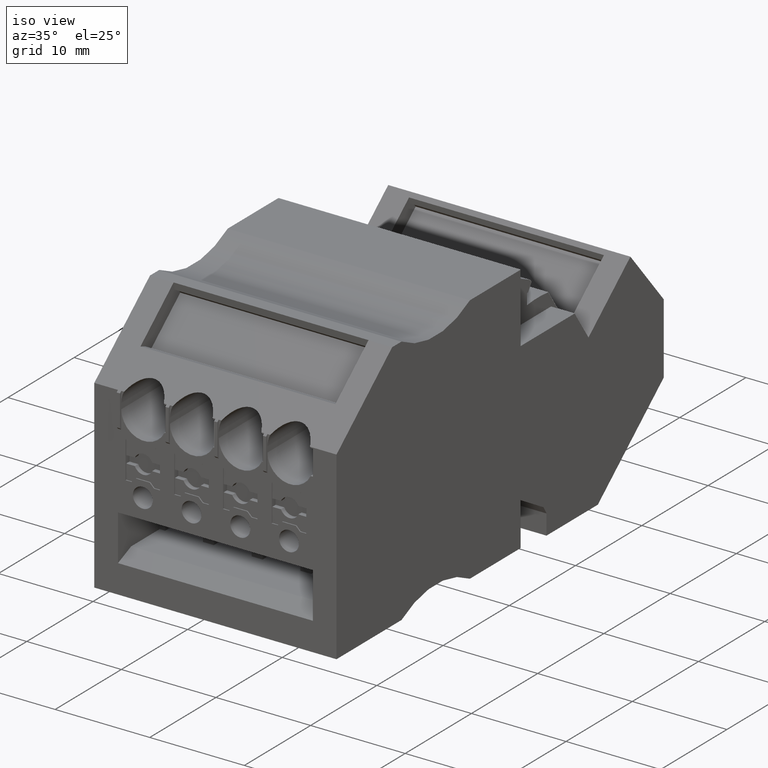
[diagram: clean part render]
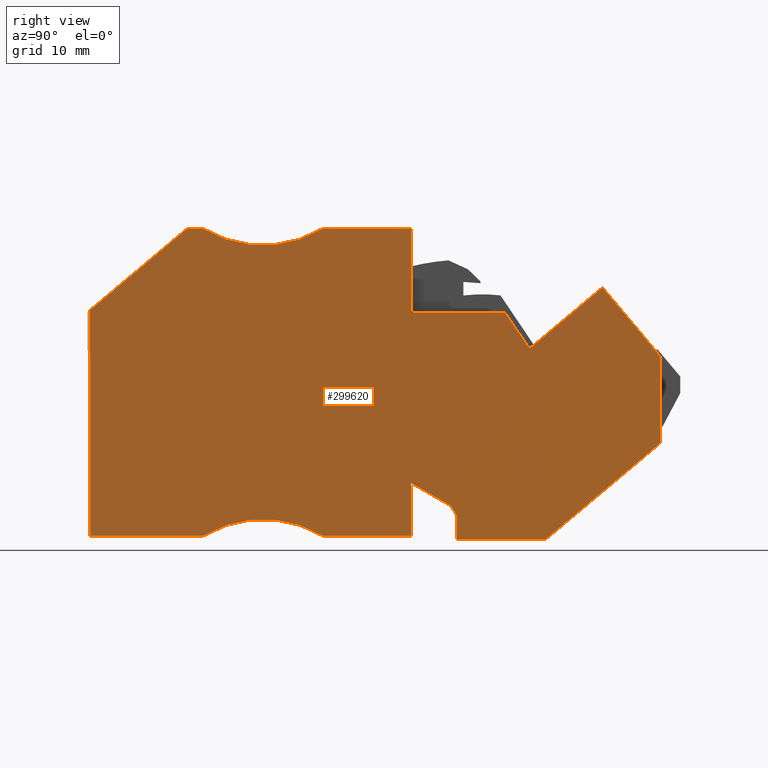
[diagram: tour spotlight — one face highlighted and labeled with its STEP entity id]
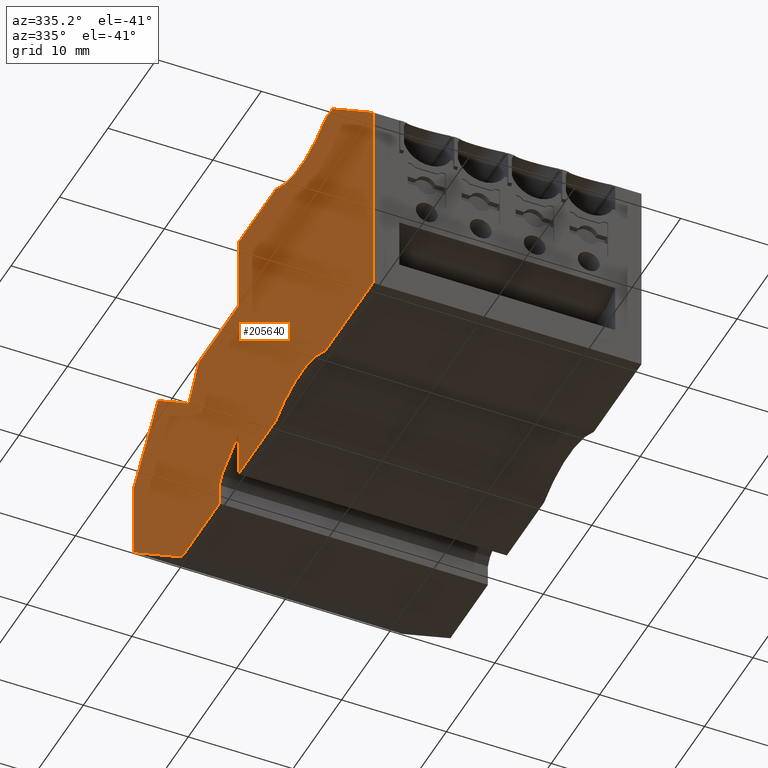
[diagram: tour spotlight — one face highlighted and labeled with its STEP entity id]
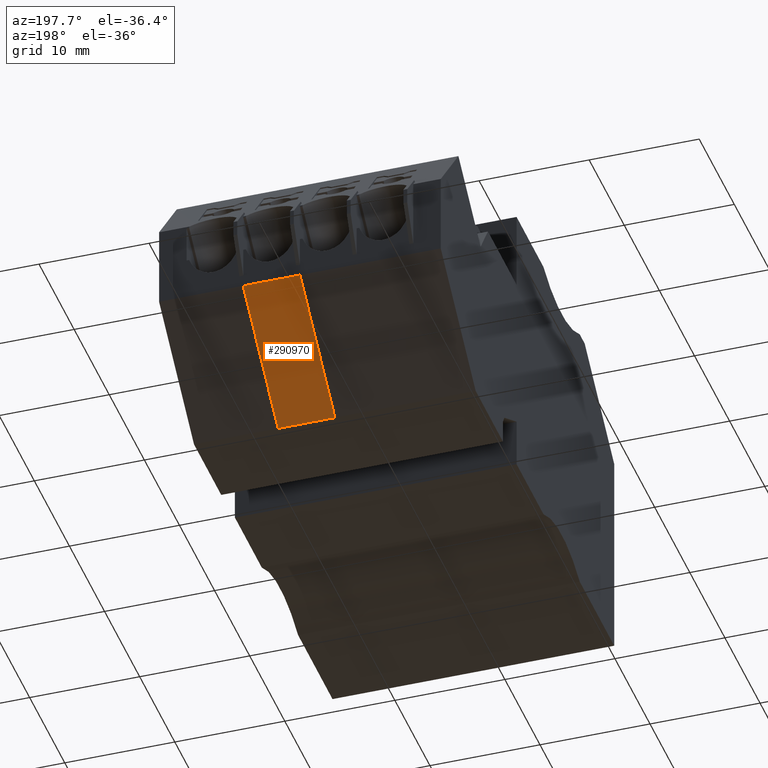
[diagram: tour spotlight — one face highlighted and labeled with its STEP entity id]
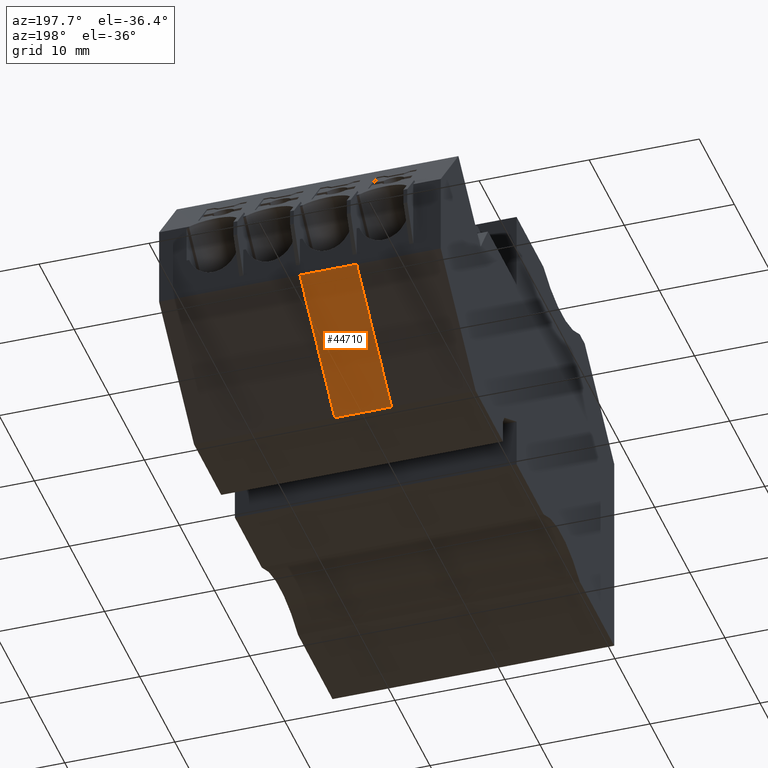
[diagram: tour spotlight — one face highlighted and labeled with its STEP entity id]
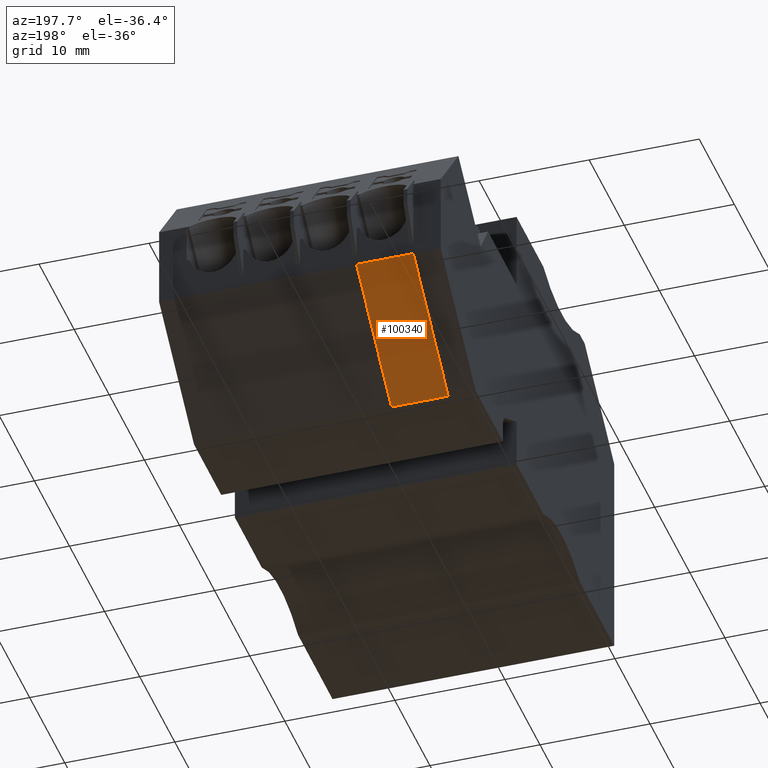
[diagram: tour spotlight — one face highlighted and labeled with its STEP entity id]
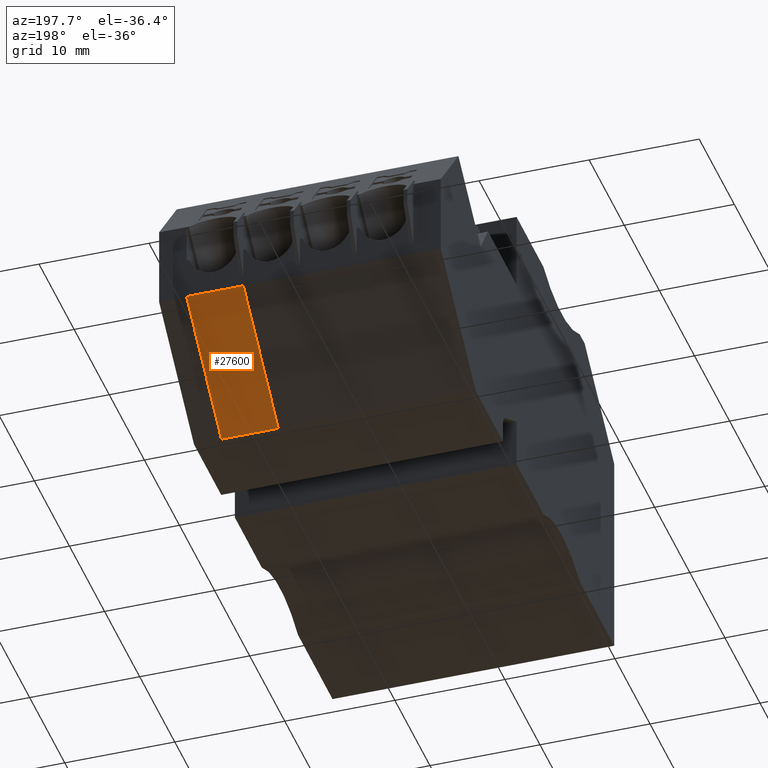
[diagram: tour spotlight — one face highlighted and labeled with its STEP entity id]
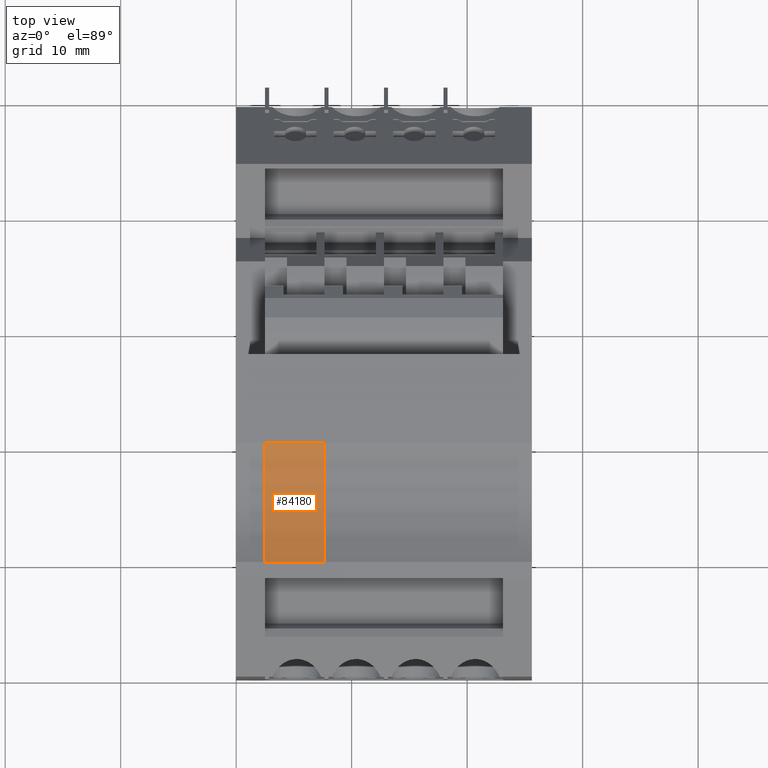
[diagram: tour spotlight — one face highlighted and labeled with its STEP entity id]
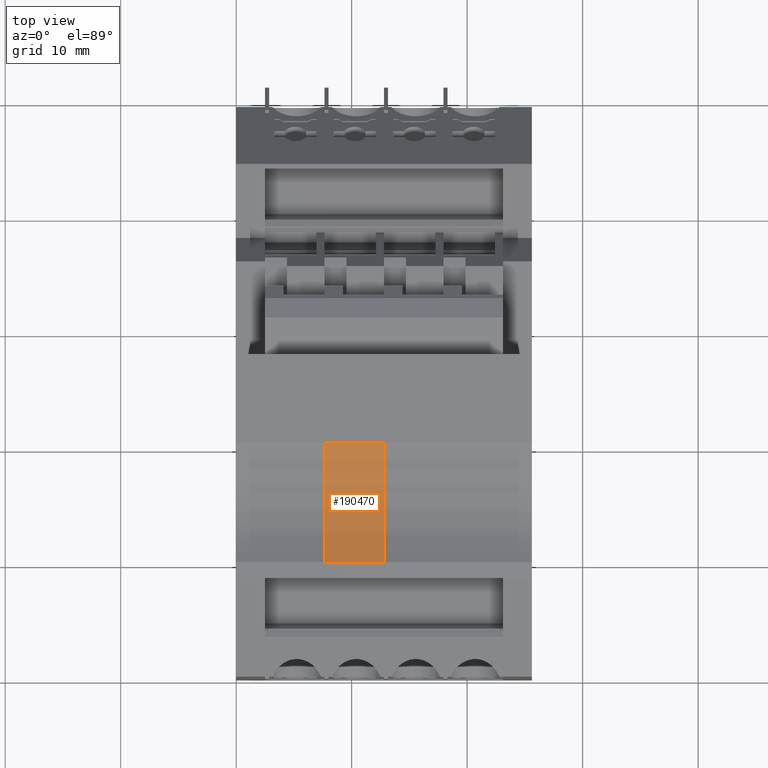
[diagram: tour spotlight — one face highlighted and labeled with its STEP entity id]
A machine part: a face-by-face anatomy tour. The part has 707 B-rep faces; the first image is the clean iso view, then the 8 largest visible faces are spotlighted one at a time (largest first), each with its STEP entity span.

Face 1 — right view, entity #299620. In plain terms, the highlighted planar face has unit normal (1, 0, -0).
Definition (entity closure, byte-faithful):
#294840=CARTESIAN_POINT('',(420.453158763793,690.48635805355,
91.2199999833062));
#294850=VERTEX_POINT('',#294840);
#294880=CARTESIAN_POINT('',(420.4531587565,686.450091408217,
91.2199999850192));
#294890=DIRECTION('',(-1.80696546614432E-9,-1.,4.24416371870361E-10));
#294900=VECTOR('',#294890,1.);
#294910=LINE('',#294880,#294900);
#294920=CARTESIAN_POINT('',(420.453158728463,670.934347655845,
91.2199999916044));
#294930=VERTEX_POINT('',#294920);
#294940=EDGE_CURVE('',#294850,#294930,#294910,.T.);
#295530=CARTESIAN_POINT('',(428.852625732517,697.534347659958,
91.219999978837));
#295540=VERTEX_POINT('',#295530);
#295590=CARTESIAN_POINT('',(418.258461660326,688.644788537941,
91.2199999844739));
#295600=DIRECTION('',(0.766044444670996,0.642787607836916,
-4.07600435471174E-10));
#295610=VECTOR('',#295600,1.);
#295620=LINE('',#295590,#295610);
#295630=EDGE_CURVE('',#294850,#295540,#295620,.T.);
#296180=CARTESIAN_POINT('',(430.260883727834,697.534347658143,
91.2199999826098));
#296190=VERTEX_POINT('',#296180);
#296220=CARTESIAN_POINT('',(459.468902528862,697.534347623079,
91.2199999734498));
#296230=DIRECTION('',(1.,-1.20456350449778E-9,-1.7595690306274E-10));
#296240=VECTOR('',#296230,1.);
#296250=LINE('',#296220,#296240);
#296260=EDGE_CURVE('',#295540,#296190,#296250,.T.);
#296500=CARTESIAN_POINT('',(440.590572489545,697.534347631815,
91.2199999812866));
#296510=VERTEX_POINT('',#296500);
#296540=CARTESIAN_POINT('',(435.425728130518,706.09731339999,
91.2199999779707));
#296550=DIRECTION('',(1.28100595517667E-10,4.64504649617954E-10,1.));
#296560=DIRECTION('',(0.707106782058739,0.707106780314356,
-4.19035115678159E-10));
#296570=AXIS2_PLACEMENT_3D('',#296540,#296550,#296560);
#296580=CIRCLE('',#296570,10.);
#296590=EDGE_CURVE('',#296190,#296510,#296580,.T.);
#296800=CARTESIAN_POINT('',(448.253158739141,697.534347622585,
91.219999980305));
#296810=VERTEX_POINT('',#296800);
#296840=CARTESIAN_POINT('',(409.368902520415,697.534347669424,
91.2199999853056));
#296850=DIRECTION('',(-1.,1.20456378205352E-9,1.28100328869811E-10));
#296860=VECTOR('',#296850,1.);
#296870=LINE('',#296840,#296860);
#296880=EDGE_CURVE('',#296810,#296510,#296870,.T.);
#297110=CARTESIAN_POINT('',(448.253158730348,690.234347622657,
91.2199999836959));
#297120=VERTEX_POINT('',#297110);
#297150=CARTESIAN_POINT('',(448.253158725631,686.318603600406,
91.2199999855147));
#297160=DIRECTION('',(-1.20456361551975E-9,-1.,4.64504820525951E-10));
#297170=VECTOR('',#297160,1.);
#297180=LINE('',#297150,#297170);
#297190=EDGE_CURVE('',#296810,#297120,#297180,.T.);
#297450=CARTESIAN_POINT('',(456.411547087324,690.234347612829,
91.219999977086));
#297460=VERTEX_POINT('',#297450);
#297490=CARTESIAN_POINT('',(412.568902745977,690.23434766564,
91.2199999848004));
#297500=DIRECTION('',(-1.,1.20456478125426E-9,1.75956911828149E-10));
#297510=VECTOR('',#297500,1.);
#297520=LINE('',#297490,#297510);
#297530=EDGE_CURVE('',#297460,#297120,#297520,.T.);
#297700=CARTESIAN_POINT('',(471.149558070578,668.384347716165,
91.2199999837662));
#297710=DIRECTION('',(0.559192902426276,-0.829037573259547,
2.53463132922706E-10));
#297720=VECTOR('',#297710,1.);
#297730=LINE('',#297700,#297720);
#297740=CARTESIAN_POINT('',(458.49779835362,687.141352911415,
91.2199999780317));
#297750=VERTEX_POINT('',#297740);
#297760=EDGE_CURVE('',#297460,#297750,#297730,.T.);
#298120=CARTESIAN_POINT('',(469.853158713036,678.981362845637,
91.2199999794969));
#298130=VERTEX_POINT('',#298120);
#298160=CARTESIAN_POINT('',(469.853158747892,707.918603569382,
91.2199999672154));
#298170=DIRECTION('',(1.20455911911653E-9,1.,-4.24416471219152E-10));
#298180=VECTOR('',#298170,1.);
#298190=LINE('',#298160,#298180);
#298200=CARTESIAN_POINT('',(469.85315872203,686.448039210916,
91.2199999763279));
#298210=VERTEX_POINT('',#298200);
#298220=EDGE_CURVE('',#298130,#298210,#298190,.T.);
#298500=CARTESIAN_POINT('',(459.905573288312,670.634347608322,
91.2199999847898));
#298510=VERTEX_POINT('',#298500);
#298540=CARTESIAN_POINT('',(447.053267503156,659.849982594808,
91.2199999916283));
#298550=DIRECTION('',(-0.766044444016711,-0.642787608616663,
4.07600244682758E-10));
#298560=VECTOR('',#298550,1.);
#298570=LINE('',#298540,#298560);
#298580=EDGE_CURVE('',#298130,#298510,#298570,.T.);
#298720=CARTESIAN_POINT('',(434.418902609644,672.484347517985,
91.2199999884892));
#298730=DIRECTION('',(1.75956914421888E-10,4.2441642785003E-10,1.));
#298740=DIRECTION('',(0.707106780334796,-0.707106782038299,
1.75687407306717E-10));
#298750=AXIS2_PLACEMENT_3D('',#298720,#298730,#298740);
#298760=PLANE('',#298750);
#298770=CARTESIAN_POINT('',(448.253158712608,675.507552701316,
91.2199999847718));
#298780=VERTEX_POINT('',#298770);
#298790=CARTESIAN_POINT('',(448.2531587071,670.934347622358,
91.2199999926608));
#298800=VERTEX_POINT('',#298790);
#298810=EDGE_CURVE('',#298780,#298800,#297180,.T.);
#298820=ORIENTED_EDGE('',*,*,#298810,.F.);
#298830=CARTESIAN_POINT('',(435.968902485823,670.934347637155,
91.2199999942344));
#298840=DIRECTION('',(1.,-1.20456572494381E-9,-1.28100291599098E-10));
#298850=VECTOR('',#298840,1.);
#298860=LINE('',#298830,#298850);
#298870=CARTESIAN_POINT('',(440.590572459532,670.934347631604,
91.2199999936424));
#298880=VERTEX_POINT('',#298870);
#298890=EDGE_CURVE('',#298880,#298800,#298860,.T.);
#298900=ORIENTED_EDGE('',*,*,#298890,.T.);
#298910=CARTESIAN_POINT('',(435.425728079363,662.371381876176,
91.2199999982816));
#298920=DIRECTION('',(1.28100595517667E-10,4.64504649617954E-10,1.));
#298930=DIRECTION('',(0.707106782058739,0.707106780314356,
-4.19035115678159E-10));
#298940=AXIS2_PLACEMENT_3D('',#298910,#298920,#298930);
#298950=CIRCLE('',#298940,10.);
#298960=CARTESIAN_POINT('',(430.260883719796,670.934347644031,
91.2199999949657));
#298970=VERTEX_POINT('',#298960);
#298980=EDGE_CURVE('',#298880,#298970,#298950,.T.);
#298990=ORIENTED_EDGE('',*,*,#298980,.F.);
#299000=CARTESIAN_POINT('',(435.668902487841,670.934347637517,
91.2199999942729));
#299010=DIRECTION('',(1.,-1.20456572494381E-9,-1.2810032886981E-10));
#299020=VECTOR('',#299010,1.);
#299030=LINE('',#299000,#299020);
#299040=EDGE_CURVE('',#294930,#298970,#299030,.T.);
#299050=ORIENTED_EDGE('',*,*,#299040,.T.);
#299060=ORIENTED_EDGE('',*,*,#294940,.T.);
#299070=ORIENTED_EDGE('',*,*,#295630,.F.);
#299080=ORIENTED_EDGE('',*,*,#296260,.F.);
#299090=ORIENTED_EDGE('',*,*,#296590,.F.);
#299100=ORIENTED_EDGE('',*,*,#296880,.T.);
#299110=ORIENTED_EDGE('',*,*,#297190,.F.);
#299120=ORIENTED_EDGE('',*,*,#297530,.T.);
#299130=ORIENTED_EDGE('',*,*,#297760,.F.);
#299140=CARTESIAN_POINT('',(434.418902596824,666.936760421751,
91.2199999908436));
#299150=DIRECTION('',(0.766044443506207,0.642787609225058,
-4.07600241177514E-10));
#299160=VECTOR('',#299150,1.);
#299170=LINE('',#299140,#299160);
#299180=CARTESIAN_POINT('',(464.820007008236,692.446315855238,
91.2199999746677));
#299190=VERTEX_POINT('',#299180);
#299200=EDGE_CURVE('',#297750,#299190,#299170,.T.);
#299210=ORIENTED_EDGE('',*,*,#299200,.F.);
#299220=CARTESIAN_POINT('',(460.057092040521,698.122536886176,
91.2199999730967));
#299230=DIRECTION('',(-0.642787609225153,0.766044443506127,
-2.12018918733443E-10));
#299240=VECTOR('',#299230,1.);
#299250=LINE('',#299220,#299240);
#299260=EDGE_CURVE('',#298210,#299190,#299250,.T.);
#299270=ORIENTED_EDGE('',*,*,#299260,.T.);
#299280=ORIENTED_EDGE('',*,*,#298220,.T.);
#299290=ORIENTED_EDGE('',*,*,#298580,.F.);
#299300=CARTESIAN_POINT('',(436.268902487463,670.634347636794,
91.2199999889488));
#299310=DIRECTION('',(1.,-1.20456572494383E-9,-1.75956908679912E-10));
#299320=VECTOR('',#299310,1.);
#299330=LINE('',#299300,#299320);
#299340=CARTESIAN_POINT('',(452.153158702437,670.63434761766,
91.2199999861539));
#299350=VERTEX_POINT('',#299340);
#299360=EDGE_CURVE('',#299350,#298510,#299330,.T.);
#299370=ORIENTED_EDGE('',*,*,#299360,.T.);
#299380=CARTESIAN_POINT('',(452.153158721088,686.118603840204,
91.2199999795821));
#299390=DIRECTION('',(1.20456272734136E-9,1.,-4.24416190185318E-10));
#299400=VECTOR('',#299390,1.);
#299410=LINE('',#299380,#299400);
#299420=CARTESIAN_POINT('',(452.153158704992,672.755886649083,
91.2199999852534));
#299430=VERTEX_POINT('',#299420);
#299440=EDGE_CURVE('',#299350,#299430,#299410,.T.);
#299450=ORIENTED_EDGE('',*,*,#299440,.F.);
#299460=CARTESIAN_POINT('',(66.4180494946104,1340.86869592317,
91.2199997695683));
#299470=DIRECTION('',(-0.499999998956815,0.866025404386722,
-2.79576749618894E-10));
#299480=VECTOR('',#299470,1.);
#299490=LINE('',#299460,#299480);
#299500=CARTESIAN_POINT('',(451.720146003849,673.505886649873,
91.2199999850113));
#299510=VERTEX_POINT('',#299500);
#299520=EDGE_CURVE('',#299430,#299510,#299490,.T.);
#299530=ORIENTED_EDGE('',*,*,#299520,.F.);
#299540=CARTESIAN_POINT('',(443.998522773903,677.963967912664,
91.2199999844779));
#299550=DIRECTION('',(0.866025403182159,-0.50000000104318,
5.9824925418767E-11));
#299560=VECTOR('',#299550,1.);
#299570=LINE('',#299540,#299560);
#299580=EDGE_CURVE('',#298780,#299510,#299570,.T.);
#299590=ORIENTED_EDGE('',*,*,#299580,.T.);
#299600=EDGE_LOOP('',(#299590,#299530,#299450,#299370,#299290,#299280,
#299270,#299210,#299130,#299120,#299110,#299100,#299090,#299080,#299070,
#299060,#299050,#298990,#298900,#298820));
#299610=FACE_OUTER_BOUND('',#299600,.T.);
#299620=ADVANCED_FACE('',(#299610),#298760,.T.);

Face 2 — auxiliary view, entity #205640. In plain terms, the highlighted planar face has unit normal (1, 0, -0).
Definition (entity closure, byte-faithful):
#2000=CARTESIAN_POINT('',(456.411547139309,690.234347595226,
65.6199999848636));
#2010=VERTEX_POINT('',#2000);
#2040=CARTESIAN_POINT('',(456.354088497213,690.319533535533,
65.6199999848466));
#2050=DIRECTION('',(0.559192902426275,-0.829037573259547,
1.64731964349382E-10));
#2060=VECTOR('',#2050,1.);
#2070=LINE('',#2040,#2060);
#2080=CARTESIAN_POINT('',(458.49779838811,687.141352914838,
65.6199999854782));
#2090=VERTEX_POINT('',#2080);
#2100=EDGE_CURVE('',#2010,#2090,#2070,.T.);
#7080=CARTESIAN_POINT('',(469.85315876502,678.981362834245,
65.6199999860979));
#7090=VERTEX_POINT('',#7080);
#7140=CARTESIAN_POINT('',(444.823915920298,657.97933445416,
65.6199999969811));
#7150=DIRECTION('',(-0.766044444016711,-0.642787608616664,
3.33093887820067E-10));
#7160=VECTOR('',#7150,1.);
#7170=LINE('',#7140,#7160);
#7180=CARTESIAN_POINT('',(459.905573332894,670.634347590718,
65.6199999904233));
#7190=VERTEX_POINT('',#7180);
#7200=EDGE_CURVE('',#7090,#7190,#7170,.T.);
#11880=CARTESIAN_POINT('',(430.260883771781,670.934347626427,
65.6199999960708));
#11890=VERTEX_POINT('',#11880);
#11920=CARTESIAN_POINT('',(437.768902474305,670.934347617416,
65.6199999951893));
#11930=DIRECTION('',(1.,-1.20456622454417E-9,-1.17410331424629E-10));
#11940=VECTOR('',#11930,1.);
#11950=LINE('',#11920,#11940);
#11960=CARTESIAN_POINT('',(420.453158744921,670.934347638241,
65.6199999970832));
#11970=VERTEX_POINT('',#11960);
#11980=EDGE_CURVE('',#11970,#11890,#11950,.T.);
#13080=CARTESIAN_POINT('',(405.268902813088,697.534347656663,
65.6199999842198));
#13090=DIRECTION('',(-1.,1.20456356000891E-9,1.174102456936E-10));
#13100=VECTOR('',#13090,1.);
#13110=LINE('',#13080,#13100);
#13120=CARTESIAN_POINT('',(430.26088380298,697.534347626569,
65.6199999812855));
#13130=VERTEX_POINT('',#13120);
#13140=CARTESIAN_POINT('',(428.852625747158,697.534347628255,
65.6199999814509));
#13150=VERTEX_POINT('',#13140);
#13160=EDGE_CURVE('',#13130,#13150,#13110,.T.);
#40000=CARTESIAN_POINT('',(405.268902812992,697.534347656759,
65.6199999842198));
#40010=DIRECTION('',(1.,-1.20456367103121E-9,-1.174102456936E-10));
#40020=VECTOR('',#40010,1.);
#40030=LINE('',#40000,#40020);
#40040=CARTESIAN_POINT('',(440.590572541529,697.534347614206,
65.6199999800726));
#40050=VERTEX_POINT('',#40040);
#40060=CARTESIAN_POINT('',(448.253158791126,697.534347604982,
65.6199999791731));
#40070=VERTEX_POINT('',#40060);
#40080=EDGE_CURVE('',#40050,#40070,#40030,.T.);
#117010=CARTESIAN_POINT('',(469.853158794938,703.818603800738,
65.6199999782945));
#117020=DIRECTION('',(1.20455923013889E-9,1.,-3.14176849771794E-10));
#117030=VECTOR('',#117020,1.);
#117040=LINE('',#117010,#117030);
#117050=CARTESIAN_POINT('',(469.853158774015,686.448039193312,
65.619999983752));
#117060=VERTEX_POINT('',#117050);
#117070=EDGE_CURVE('',#7090,#117060,#117040,.T.);
#147650=CARTESIAN_POINT('',(452.153158773073,686.118603821514,
65.6199999868857));
#147660=DIRECTION('',(-1.20456283836372E-9,-1.,3.14176849771795E-10));
#147670=VECTOR('',#147660,1.);
#147680=LINE('',#147650,#147670);
#147690=CARTESIAN_POINT('',(452.153158756977,672.75588663148,
65.6199999910839));
#147700=VERTEX_POINT('',#147690);
#147710=CARTESIAN_POINT('',(452.153158754421,670.634347600057,
65.6199999917505));
#147720=VERTEX_POINT('',#147710);
#147730=EDGE_CURVE('',#147700,#147720,#147680,.T.);
#148750=CARTESIAN_POINT('',(448.253158764593,675.507552683712,
65.6199999914164));
#148760=VERTEX_POINT('',#148750);
#148810=CARTESIAN_POINT('',(448.253158772677,682.218603830513,
65.6199999876862));
#148820=DIRECTION('',(1.20456367103085E-9,1.,-5.55840372298432E-10));
#148830=VECTOR('',#148820,1.);
#148840=LINE('',#148810,#148830);
#148850=CARTESIAN_POINT('',(448.253158759084,670.934347604754,
65.6199999939584));
#148860=VERTEX_POINT('',#148850);
#148870=EDGE_CURVE('',#148860,#148760,#148840,.T.);
#154530=CARTESIAN_POINT('',(416.029110052551,686.774140391277,
65.6199999889374));
#154540=DIRECTION('',(-0.766044444670996,-0.642787607836916,
4.47228797581442E-10));
#154550=VECTOR('',#154540,1.);
#154560=LINE('',#154530,#154550);
#154570=CARTESIAN_POINT('',(420.453158780251,690.486358028797,
65.6199999909404));
#154580=VERTEX_POINT('',#154570);
#154590=EDGE_CURVE('',#13150,#154580,#154560,.T.);
#204760=CARTESIAN_POINT('',(434.418902661629,672.484347500381,
65.6199999942053));
#204770=DIRECTION('',(1.71197519729751E-10,3.14176843554808E-10,1.));
#204780=DIRECTION('',(0.707106780334796,-0.707106782038299,
1.01101649859584E-10));
#204790=AXIS2_PLACEMENT_3D('',#204760,#204770,#204780);
#204800=PLANE('',#204790);
#204810=CARTESIAN_POINT('',(461.927740217505,695.893185242398,
65.6199999821414));
#204820=DIRECTION('',(-0.642787609225153,0.766044443506128,
-1.30629770124897E-10));
#204830=VECTOR('',#204820,1.);
#204840=LINE('',#204810,#204830);
#204850=CARTESIAN_POINT('',(464.820007042638,692.446315858589,
65.6199999827291));
#204860=VERTEX_POINT('',#204850);
#204870=EDGE_CURVE('',#117060,#204860,#204840,.T.);
#204880=ORIENTED_EDGE('',*,*,#204870,.F.);
#204890=CARTESIAN_POINT('',(435.206020061881,667.597230335747,
65.619999995606));
#204900=DIRECTION('',(0.766044443506207,0.642787609225058,
-3.3309388789434E-10));
#204910=VECTOR('',#204900,1.);
#204920=LINE('',#204890,#204910);
#204930=EDGE_CURVE('',#2090,#204860,#204920,.T.);
#204940=ORIENTED_EDGE('',*,*,#204930,.T.);
#204950=ORIENTED_EDGE('',*,*,#2100,.T.);
#204960=CARTESIAN_POINT('',(412.568902804127,690.234347648037,
65.6199999923693));
#204970=DIRECTION('',(1.,-1.20456467023196E-9,-1.71197442612219E-10));
#204980=VECTOR('',#204970,1.);
#204990=LINE('',#204960,#204980);
#205000=CARTESIAN_POINT('',(448.253158782332,690.234347605053,
65.6199999832308));
#205010=VERTEX_POINT('',#205000);
#205020=EDGE_CURVE('',#205010,#2010,#204990,.T.);
#205030=ORIENTED_EDGE('',*,*,#205020,.T.);
#205040=EDGE_CURVE('',#205010,#40070,#148840,.T.);
#205050=ORIENTED_EDGE('',*,*,#205040,.F.);
#205060=ORIENTED_EDGE('',*,*,#40080,.T.);
#205070=CARTESIAN_POINT('',(435.425728182503,706.097313382387,
65.6199999759195));
#205080=DIRECTION('',(1.17410559961435E-10,5.5584020857613E-10,1.));
#205090=DIRECTION('',(-0.70710678033479,0.707106782038305,
-3.10016884805469E-10));
#205100=AXIS2_PLACEMENT_3D('',#205070,#205080,#205090);
#205110=CIRCLE('',#205100,10.);
#205120=EDGE_CURVE('',#13130,#40050,#205110,.T.);
#205130=ORIENTED_EDGE('',*,*,#205120,.T.);
#205140=ORIENTED_EDGE('',*,*,#13160,.F.);
#205150=ORIENTED_EDGE('',*,*,#154590,.F.);
#205160=CARTESIAN_POINT('',(420.453158772957,686.450091425359,
65.6199999922086));
#205170=DIRECTION('',(-1.80696546614438E-9,-1.,3.14176839863505E-10));
#205180=VECTOR('',#205170,1.);
#205190=LINE('',#205160,#205180);
#205200=EDGE_CURVE('',#154580,#11970,#205190,.T.);
#205210=ORIENTED_EDGE('',*,*,#205200,.F.);
#205220=ORIENTED_EDGE('',*,*,#11980,.F.);
#205230=CARTESIAN_POINT('',(435.425728131347,662.371381858572,
65.6200000002241));
#205240=DIRECTION('',(1.17410559961435E-10,5.5584020857613E-10,1.));
#205250=DIRECTION('',(-0.70710678033479,0.707106782038305,
-3.10016884805469E-10));
#205260=AXIS2_PLACEMENT_3D('',#205230,#205240,#205250);
#205270=CIRCLE('',#205260,10.);
#205280=CARTESIAN_POINT('',(440.590572511543,670.934347613985,
65.6199999948579));
#205290=VERTEX_POINT('',#205280);
#205300=EDGE_CURVE('',#205290,#11890,#205270,.T.);
#205310=ORIENTED_EDGE('',*,*,#205300,.T.);
#205320=CARTESIAN_POINT('',(431.868902781178,670.93434762449,
65.6199999958821));
#205330=DIRECTION('',(-1.,1.20456572494381E-9,1.17410245693599E-10));
#205340=VECTOR('',#205330,1.);
#205350=LINE('',#205320,#205340);
#205360=EDGE_CURVE('',#148860,#205290,#205350,.T.);
#205370=ORIENTED_EDGE('',*,*,#205360,.T.);
#205380=ORIENTED_EDGE('',*,*,#148870,.F.);
#205390=CARTESIAN_POINT('',(443.998522826577,677.963967894663,
65.6199999908437));
#205400=DIRECTION('',(0.866025403182158,-0.50000000104318,
8.82702489348227E-12));
#205410=VECTOR('',#205400,1.);
#205420=LINE('',#205390,#205410);
#205430=CARTESIAN_POINT('',(451.720146055833,673.50588663227,
65.6199999909224));
#205440=VERTEX_POINT('',#205430);
#205450=EDGE_CURVE('',#148760,#205440,#205420,.T.);
#205460=ORIENTED_EDGE('',*,*,#205450,.F.);
#205470=CARTESIAN_POINT('',(447.262064812042,681.227509872266,
65.6199999892596));
#205480=DIRECTION('',(0.499999998956815,-0.866025404386722,
1.86486341807172E-10));
#205490=VECTOR('',#205480,1.);
#205500=LINE('',#205470,#205490);
#205510=EDGE_CURVE('',#205440,#147700,#205500,.T.);
#205520=ORIENTED_EDGE('',*,*,#205510,.F.);
#205530=ORIENTED_EDGE('',*,*,#147730,.F.);
#205540=CARTESIAN_POINT('',(432.168902780816,670.634347624129,
65.6199999951717));
#205550=DIRECTION('',(1.,-1.20456572494383E-9,-1.71197442612219E-10));
#205560=VECTOR('',#205550,1.);
#205570=LINE('',#205540,#205560);
#205580=EDGE_CURVE('',#147720,#7190,#205570,.T.);
#205590=ORIENTED_EDGE('',*,*,#205580,.F.);
#205600=ORIENTED_EDGE('',*,*,#7200,.T.);
#205610=ORIENTED_EDGE('',*,*,#117070,.F.);
#205620=EDGE_LOOP('',(#205610,#205600,#205590,#205530,#205520,#205460,
#205380,#205370,#205310,#205220,#205210,#205150,#205140,#205130,#205060,
#205050,#205030,#204950,#204940,#204880));
#205630=FACE_OUTER_BOUND('',#205620,.T.);
#205640=ADVANCED_FACE('',(#205630),#204800,.F.);

Face 3 — auxiliary view, entity #290970. In plain terms, the highlighted planar face has unit normal (0, -0.6428, 0.766).
Definition (entity closure, byte-faithful):
#6990=CARTESIAN_POINT('',(469.853158766227,678.981362837916,
73.2699999858219));
#7000=DIRECTION('',(-0.642787608616664,0.766044444016711,
-2.66174790011145E-10));
#7010=DIRECTION('',(0.766044444016711,0.642787608616664,
-7.65167882315017E-10));
#7020=AXIS2_PLACEMENT_3D('',#6990,#7000,#7010);
#7030=PLANE('',#7020);
#7040=CARTESIAN_POINT('',(469.853158765259,678.981362835314,
68.1199999778021));
#7050=DIRECTION('',(9.53020393934754E-11,4.27434416588531E-10,1.));
#7060=VECTOR('',#7050,1.);
#7070=LINE('',#7040,#7060);
#8830=CARTESIAN_POINT('',(459.905573338721,670.634347601845,
83.5699999974377));
#8840=VERTEX_POINT('',#8830);
#11050=CARTESIAN_POINT('',(469.85315876624,678.981362839716,
78.4199999917636));
#11060=VERTEX_POINT('',#11050);
#27380=CARTESIAN_POINT('',(469.853158766731,678.981362841917,
83.5699999917636));
#27390=VERTEX_POINT('',#27380);
#27440=CARTESIAN_POINT('',(447.053267548777,659.849982584313,
83.5700000047686));
#27450=DIRECTION('',(0.766044444016711,0.642787608616664,
-4.36950297394486E-10));
#27460=VECTOR('',#27450,1.);
#27470=LINE('',#27440,#27460);
#27480=EDGE_CURVE('',#8840,#27390,#27470,.T.);
#44590=CARTESIAN_POINT('',(459.905573340141,670.634347598171,
78.4199999974377));
#44600=VERTEX_POINT('',#44590);
#44630=CARTESIAN_POINT('',(447.053267548517,659.849982582306,
78.4200000047688));
#44640=DIRECTION('',(0.766044444016711,0.642787608616664,
-4.36950297394486E-10));
#44650=VECTOR('',#44640,1.);
#44660=LINE('',#44630,#44650);
#44670=EDGE_CURVE('',#44600,#11060,#44660,.T.);
#155940=EDGE_CURVE('',#11060,#27390,#7070,.T.);
#270430=CARTESIAN_POINT('',(459.905573333039,670.634347590955,
83.5699999774506));
#270440=DIRECTION('',(-3.51177059947896E-10,-5.0369111157255E-10,-1.));
#270450=VECTOR('',#270440,1.);
#270460=LINE('',#270430,#270450);
#270470=CARTESIAN_POINT('',(459.90557333485,670.634347591952,
81.0699999847034));
#270480=VERTEX_POINT('',#270470);
#270490=EDGE_CURVE('',#8840,#270480,#270460,.T.);
#270510=CARTESIAN_POINT('',(459.905573340141,670.634347590478,
78.4200000038368));
#270520=DIRECTION('',(2.48917491584714E-10,5.5633326625038E-10,1.));
#270530=VECTOR('',#270520,1.);
#270540=LINE('',#270510,#270530);
#270550=EDGE_CURVE('',#44600,#270480,#270540,.T.);
#290900=ORIENTED_EDGE('',*,*,#155940,.T.);
#290910=ORIENTED_EDGE('',*,*,#44670,.T.);
#290920=ORIENTED_EDGE('',*,*,#270550,.F.);
#290930=ORIENTED_EDGE('',*,*,#270490,.T.);
#290940=ORIENTED_EDGE('',*,*,#27480,.F.);
#290950=EDGE_LOOP('',(#290940,#290930,#290920,#290910,#290900));
#290960=FACE_OUTER_BOUND('',#290950,.T.);
#290970=ADVANCED_FACE('',(#290960),#7030,.F.);

Face 4 — auxiliary view, entity #44710. In plain terms, the highlighted planar face has unit normal (0, -0.6428, 0.766).
Definition (entity closure, byte-faithful):
#6990=CARTESIAN_POINT('',(469.853158766227,678.981362837916,
73.2699999858219));
#7000=DIRECTION('',(-0.642787608616664,0.766044444016711,
-2.66174790011145E-10));
#7010=DIRECTION('',(0.766044444016711,0.642787608616664,
-7.65167882315017E-10));
#7020=AXIS2_PLACEMENT_3D('',#6990,#7000,#7010);
#7030=PLANE('',#7020);
#7040=CARTESIAN_POINT('',(469.853158765259,678.981362835314,
68.1199999778021));
#7050=DIRECTION('',(9.53020393934754E-11,4.27434416588531E-10,1.));
#7060=VECTOR('',#7050,1.);
#7070=LINE('',#7040,#7060);
#11030=CARTESIAN_POINT('',(469.85315876575,678.981362837515,
73.2699999917637));
#11040=VERTEX_POINT('',#11030);
#11050=CARTESIAN_POINT('',(469.85315876624,678.981362839716,
78.4199999917636));
#11060=VERTEX_POINT('',#11050);
#11070=EDGE_CURVE('',#11040,#11060,#7070,.T.);
#29350=CARTESIAN_POINT('',(459.905573340993,670.634347595172,
73.2699999974377));
#29360=VERTEX_POINT('',#29350);
#44400=ORIENTED_EDGE('',*,*,#11070,.T.);
#44410=CARTESIAN_POINT('',(447.053267548257,659.849982580298,
73.2700000047687));
#44420=DIRECTION('',(0.766044444016711,0.642787608616664,
-4.36950297394486E-10));
#44430=VECTOR('',#44420,1.);
#44440=LINE('',#44410,#44430);
#44450=EDGE_CURVE('',#29360,#11040,#44440,.T.);
#44460=ORIENTED_EDGE('',*,*,#44450,.T.);
#44470=CARTESIAN_POINT('',(459.905573340993,670.634347587358,
73.2700000038368));
#44480=DIRECTION('',(2.48917491584714E-10,5.5633326625038E-10,1.));
#44490=VECTOR('',#44480,1.);
#44500=LINE('',#44470,#44490);
#44510=CARTESIAN_POINT('',(459.905573335703,670.634347588832,
75.9199999847034));
#44520=VERTEX_POINT('',#44510);
#44530=EDGE_CURVE('',#29360,#44520,#44500,.T.);
#44540=ORIENTED_EDGE('',*,*,#44530,.F.);
#44550=CARTESIAN_POINT('',(459.905573333891,670.634347587834,
78.4199999774507));
#44560=DIRECTION('',(-3.51177059947896E-10,-5.0369111157255E-10,-1.));
#44570=VECTOR('',#44560,1.);
#44580=LINE('',#44550,#44570);
#44590=CARTESIAN_POINT('',(459.905573340141,670.634347598171,
78.4199999974377));
#44600=VERTEX_POINT('',#44590);
#44610=EDGE_CURVE('',#44600,#44520,#44580,.T.);
#44620=ORIENTED_EDGE('',*,*,#44610,.T.);
#44630=CARTESIAN_POINT('',(447.053267548517,659.849982582306,
78.4200000047688));
#44640=DIRECTION('',(0.766044444016711,0.642787608616664,
-4.36950297394486E-10));
#44650=VECTOR('',#44640,1.);
#44660=LINE('',#44630,#44650);
#44670=EDGE_CURVE('',#44600,#11060,#44660,.T.);
#44680=ORIENTED_EDGE('',*,*,#44670,.F.);
#44690=EDGE_LOOP('',(#44680,#44620,#44540,#44460,#44400));
#44700=FACE_OUTER_BOUND('',#44690,.T.);
#44710=ADVANCED_FACE('',(#44700),#7030,.F.);

Face 5 — auxiliary view, entity #100340. In plain terms, the highlighted planar face has unit normal (0, -0.6428, 0.766).
Definition (entity closure, byte-faithful):
#6990=CARTESIAN_POINT('',(469.853158766227,678.981362837916,
73.2699999858219));
#7000=DIRECTION('',(-0.642787608616664,0.766044444016711,
-2.66174790011145E-10));
#7010=DIRECTION('',(0.766044444016711,0.642787608616664,
-7.65167882315017E-10));
#7020=AXIS2_PLACEMENT_3D('',#6990,#7000,#7010);
#7030=PLANE('',#7020);
#7040=CARTESIAN_POINT('',(469.853158765259,678.981362835314,
68.1199999778021));
#7050=DIRECTION('',(9.53020393934754E-11,4.27434416588531E-10,1.));
#7060=VECTOR('',#7050,1.);
#7070=LINE('',#7040,#7060);
#7100=CARTESIAN_POINT('',(469.853158765259,678.981362835314,
68.1199999917637));
#7110=VERTEX_POINT('',#7100);
#7260=CARTESIAN_POINT('',(459.905573341846,670.634347592174,
68.1199999974378));
#7270=VERTEX_POINT('',#7260);
#7300=CARTESIAN_POINT('',(447.053267547997,659.849982578291,
68.1200000047687));
#7310=DIRECTION('',(0.766044444016711,0.642787608616664,
-4.36950297394486E-10));
#7320=VECTOR('',#7310,1.);
#7330=LINE('',#7300,#7320);
#7340=EDGE_CURVE('',#7270,#7110,#7330,.T.);
#11030=CARTESIAN_POINT('',(469.85315876575,678.981362837515,
73.2699999917637));
#11040=VERTEX_POINT('',#11030);
#24340=EDGE_CURVE('',#7110,#11040,#7070,.T.);
#29350=CARTESIAN_POINT('',(459.905573340993,670.634347595172,
73.2699999974377));
#29360=VERTEX_POINT('',#29350);
#29390=CARTESIAN_POINT('',(459.905573334744,670.634347584714,
73.2699999774507));
#29400=DIRECTION('',(-3.51177059947896E-10,-5.0369111157255E-10,-1.));
#29410=VECTOR('',#29400,1.);
#29420=LINE('',#29390,#29410);
#29430=CARTESIAN_POINT('',(459.905573336556,670.634347585711,
70.7699999847034));
#29440=VERTEX_POINT('',#29430);
#29450=EDGE_CURVE('',#29360,#29440,#29420,.T.);
#29470=CARTESIAN_POINT('',(459.905573341846,670.634347584237,
68.1200000038369));
#29480=DIRECTION('',(2.48917491584714E-10,5.5633326625038E-10,1.));
#29490=VECTOR('',#29480,1.);
#29500=LINE('',#29470,#29490);
#29510=EDGE_CURVE('',#7270,#29440,#29500,.T.);
#44410=CARTESIAN_POINT('',(447.053267548257,659.849982580298,
73.2700000047687));
#44420=DIRECTION('',(0.766044444016711,0.642787608616664,
-4.36950297394486E-10));
#44430=VECTOR('',#44420,1.);
#44440=LINE('',#44410,#44430);
#44450=EDGE_CURVE('',#29360,#11040,#44440,.T.);
#100270=ORIENTED_EDGE('',*,*,#24340,.T.);
#100280=ORIENTED_EDGE('',*,*,#7340,.T.);
#100290=ORIENTED_EDGE('',*,*,#29510,.F.);
#100300=ORIENTED_EDGE('',*,*,#29450,.T.);
#100310=ORIENTED_EDGE('',*,*,#44450,.F.);
#100320=EDGE_LOOP('',(#100310,#100300,#100290,#100280,#100270));
#100330=FACE_OUTER_BOUND('',#100320,.T.);
#100340=ADVANCED_FACE('',(#100330),#7030,.F.);

Face 6 — auxiliary view, entity #27600. In plain terms, the highlighted planar face has unit normal (0, -0.6428, 0.766).
Definition (entity closure, byte-faithful):
#6990=CARTESIAN_POINT('',(469.853158766227,678.981362837916,
73.2699999858219));
#7000=DIRECTION('',(-0.642787608616664,0.766044444016711,
-2.66174790011145E-10));
#7010=DIRECTION('',(0.766044444016711,0.642787608616664,
-7.65167882315017E-10));
#7020=AXIS2_PLACEMENT_3D('',#6990,#7000,#7010);
#7030=PLANE('',#7020);
#7040=CARTESIAN_POINT('',(469.853158765259,678.981362835314,
68.1199999778021));
#7050=DIRECTION('',(9.53020393934754E-11,4.27434416588531E-10,1.));
#7060=VECTOR('',#7050,1.);
#7070=LINE('',#7040,#7060);
#8670=CARTESIAN_POINT('',(459.905573322548,670.634347590064,
88.7199999907747));
#8680=VERTEX_POINT('',#8670);
#8710=CARTESIAN_POINT('',(459.905573332186,670.634347594075,
88.7199999774507));
#8720=DIRECTION('',(-3.51177059947896E-10,-5.0369111157255E-10,-1.));
#8730=VECTOR('',#8720,1.);
#8740=LINE('',#8710,#8730);
#8750=CARTESIAN_POINT('',(459.905573333997,670.634347595073,
86.2199999847034));
#8760=VERTEX_POINT('',#8750);
#8770=EDGE_CURVE('',#8680,#8760,#8740,.T.);
#8790=CARTESIAN_POINT('',(459.905573339288,670.634347593599,
83.5700000038368));
#8800=DIRECTION('',(2.48917491584714E-10,5.5633326625038E-10,1.));
#8810=VECTOR('',#8800,1.);
#8820=LINE('',#8790,#8810);
#8830=CARTESIAN_POINT('',(459.905573338721,670.634347601845,
83.5699999974377));
#8840=VERTEX_POINT('',#8830);
#8850=EDGE_CURVE('',#8840,#8760,#8820,.T.);
#27380=CARTESIAN_POINT('',(469.853158766731,678.981362841917,
83.5699999917636));
#27390=VERTEX_POINT('',#27380);
#27400=CARTESIAN_POINT('',(469.853158767222,678.981362830984,
88.7199999850202));
#27410=VERTEX_POINT('',#27400);
#27420=EDGE_CURVE('',#27390,#27410,#7070,.T.);
#27430=ORIENTED_EDGE('',*,*,#27420,.T.);
#27440=CARTESIAN_POINT('',(447.053267548777,659.849982584313,
83.5700000047686));
#27450=DIRECTION('',(0.766044444016711,0.642787608616664,
-4.36950297394486E-10));
#27460=VECTOR('',#27450,1.);
#27470=LINE('',#27440,#27460);
#27480=EDGE_CURVE('',#8840,#27390,#27470,.T.);
#27490=ORIENTED_EDGE('',*,*,#27480,.T.);
#27500=ORIENTED_EDGE('',*,*,#8850,.F.);
#27510=ORIENTED_EDGE('',*,*,#8770,.T.);
#27520=CARTESIAN_POINT('',(447.053267636553,659.849982659755,
88.7199999982095));
#27530=DIRECTION('',(-0.766044444016711,-0.642787608616664,
4.43142365980932E-10));
#27540=VECTOR('',#27530,1.);
#27550=LINE('',#27520,#27540);
#27560=EDGE_CURVE('',#27410,#8680,#27550,.T.);
#27570=ORIENTED_EDGE('',*,*,#27560,.T.);
#27580=EDGE_LOOP('',(#27570,#27510,#27500,#27490,#27430));
#27590=FACE_OUTER_BOUND('',#27580,.T.);
#27600=ADVANCED_FACE('',(#27590),#7030,.F.);

Face 7 — top view, entity #84180. In plain terms, the highlighted cylindrical surface (partial cylindrical patch) has radius 10 mm, axis along (1, 0, -0).
Definition (entity closure, byte-faithful):
#13220=CARTESIAN_POINT('',(430.260883801922,697.534347622113,
68.1199999847475));
#13230=VERTEX_POINT('',#13220);
#40200=CARTESIAN_POINT('',(440.590572542381,697.534347615551,
68.1199999809697));
#40210=VERTEX_POINT('',#40200);
#45730=CARTESIAN_POINT('',(430.260883799414,697.534347634237,
82.9450001673223));
#45740=DIRECTION('',(3.65710502038586E-10,4.95141851786755E-10,1.));
#45750=VECTOR('',#45740,1.);
#45760=LINE('',#45730,#45750);
#45770=CARTESIAN_POINT('',(430.260883795876,697.534347629446,
73.2699999847475));
#45780=VERTEX_POINT('',#45770);
#83870=CARTESIAN_POINT('',(435.425728183013,706.097313387596,
82.9450001611936));
#83880=DIRECTION('',(3.65710502038586E-10,4.95141851786755E-10,1.));
#83890=DIRECTION('',(-0.386155668810907,-0.922433628747999,
5.97956747321646E-10));
#83900=AXIS2_PLACEMENT_3D('',#83870,#83880,#83890);
#83910=CYLINDRICAL_SURFACE('',#83900,10.);
#83920=EDGE_CURVE('',#13230,#45780,#45760,.T.);
#83930=ORIENTED_EDGE('',*,*,#83920,.T.);
#83940=CARTESIAN_POINT('',(435.425728177591,706.097313380255,
68.1199999786188));
#83950=DIRECTION('',(3.65710502038586E-10,4.95141851786755E-10,1.));
#83960=DIRECTION('',(-0.386155668810907,-0.922433628747999,
5.97956728772318E-10));
#83970=AXIS2_PLACEMENT_3D('',#83940,#83950,#83960);
#83980=CIRCLE('',#83970,10.);
#83990=EDGE_CURVE('',#13230,#40210,#83980,.T.);
#84000=ORIENTED_EDGE('',*,*,#83990,.F.);
#84010=CARTESIAN_POINT('',(440.590572543565,697.534347620336,
82.9450001635446));
#84020=DIRECTION('',(3.65710502038586E-10,4.95141851786755E-10,1.));
#84030=VECTOR('',#84020,1.);
#84040=LINE('',#84010,#84030);
#84050=CARTESIAN_POINT('',(440.590572540027,697.534347615545,
73.2699999809697));
#84060=VERTEX_POINT('',#84050);
#84070=EDGE_CURVE('',#40210,#84060,#84040,.T.);
#84080=ORIENTED_EDGE('',*,*,#84070,.F.);
#84090=CARTESIAN_POINT('',(435.425728179475,706.097313382805,
73.2699999786187));
#84100=DIRECTION('',(3.65710502038586E-10,4.95141851786755E-10,1.));
#84110=DIRECTION('',(-0.386155668810907,-0.922433628747999,
5.97956728772318E-10));
#84120=AXIS2_PLACEMENT_3D('',#84090,#84100,#84110);
#84130=CIRCLE('',#84120,10.);
#84140=EDGE_CURVE('',#45780,#84060,#84130,.T.);
#84150=ORIENTED_EDGE('',*,*,#84140,.T.);
#84160=EDGE_LOOP('',(#84150,#84080,#84000,#83930));
#84170=FACE_OUTER_BOUND('',#84160,.T.);
#84180=ADVANCED_FACE('',(#84170),#83910,.F.);

Face 8 — top view, entity #190470. In plain terms, the highlighted cylindrical surface (partial cylindrical patch) has radius 10 mm, axis along (1, 0, -0).
Definition (entity closure, byte-faithful):
#45730=CARTESIAN_POINT('',(430.260883799414,697.534347634237,
82.9450001673223));
#45740=DIRECTION('',(3.65710502038586E-10,4.95141851786755E-10,1.));
#45750=VECTOR('',#45740,1.);
#45760=LINE('',#45730,#45750);
#45770=CARTESIAN_POINT('',(430.260883795876,697.534347629446,
73.2699999847475));
#45780=VERTEX_POINT('',#45770);
#45790=CARTESIAN_POINT('',(430.260883797759,697.534347634006,
78.4199999840403));
#45800=VERTEX_POINT('',#45790);
#45810=EDGE_CURVE('',#45780,#45800,#45760,.T.);
#83870=CARTESIAN_POINT('',(435.425728183013,706.097313387596,
82.9450001611936));
#83880=DIRECTION('',(3.65710502038586E-10,4.95141851786755E-10,1.));
#83890=DIRECTION('',(-0.386155668810907,-0.922433628747999,
5.97956747321646E-10));
#83900=AXIS2_PLACEMENT_3D('',#83870,#83880,#83890);
#83910=CYLINDRICAL_SURFACE('',#83900,10.);
#84010=CARTESIAN_POINT('',(440.590572543565,697.534347620336,
82.9450001635446));
#84020=DIRECTION('',(3.65710502038586E-10,4.95141851786755E-10,1.));
#84030=VECTOR('',#84020,1.);
#84040=LINE('',#84010,#84030);
#84050=CARTESIAN_POINT('',(440.590572540027,697.534347615545,
73.2699999809697));
#84060=VERTEX_POINT('',#84050);
#84090=CARTESIAN_POINT('',(435.425728179475,706.097313382805,
73.2699999786187));
#84100=DIRECTION('',(3.65710502038586E-10,4.95141851786755E-10,1.));
#84110=DIRECTION('',(-0.386155668810907,-0.922433628747999,
5.97956728772318E-10));
#84120=AXIS2_PLACEMENT_3D('',#84090,#84100,#84110);
#84130=CIRCLE('',#84120,10.);
#84140=EDGE_CURVE('',#45780,#84060,#84130,.T.);
#190320=ORIENTED_EDGE('',*,*,#45810,.T.);
#190330=ORIENTED_EDGE('',*,*,#84140,.F.);
#190340=CARTESIAN_POINT('',(440.59057254191,697.534347621499,
78.4199999832219));
#190350=VERTEX_POINT('',#190340);
#190360=EDGE_CURVE('',#84060,#190350,#84040,.T.);
#190370=ORIENTED_EDGE('',*,*,#190360,.F.);
#190380=CARTESIAN_POINT('',(435.425728181358,706.097313385355,
78.4199999786187));
#190390=DIRECTION('',(3.65710502038586E-10,4.95141851786755E-10,1.));
#190400=DIRECTION('',(-0.386155668810907,-0.922433628747999,
5.97956728772318E-10));
#190410=AXIS2_PLACEMENT_3D('',#190380,#190390,#190400);
#190420=CIRCLE('',#190410,10.);
#190430=EDGE_CURVE('',#45800,#190350,#190420,.T.);
#190440=ORIENTED_EDGE('',*,*,#190430,.T.);
#190450=EDGE_LOOP('',(#190440,#190370,#190330,#190320));
#190460=FACE_OUTER_BOUND('',#190450,.T.);
#190470=ADVANCED_FACE('',(#190460),#83910,.F.);